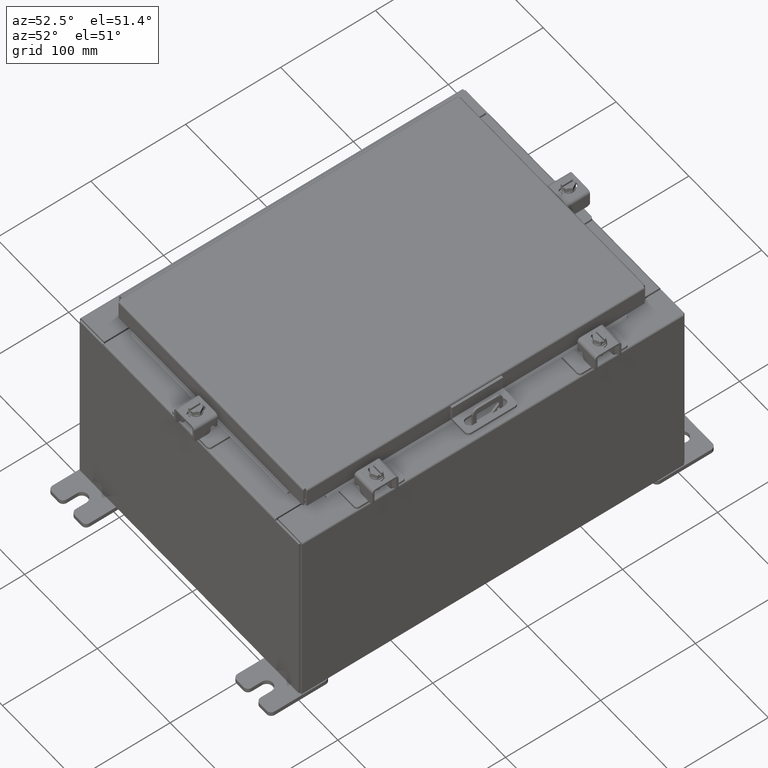
[diagram: clean part render]
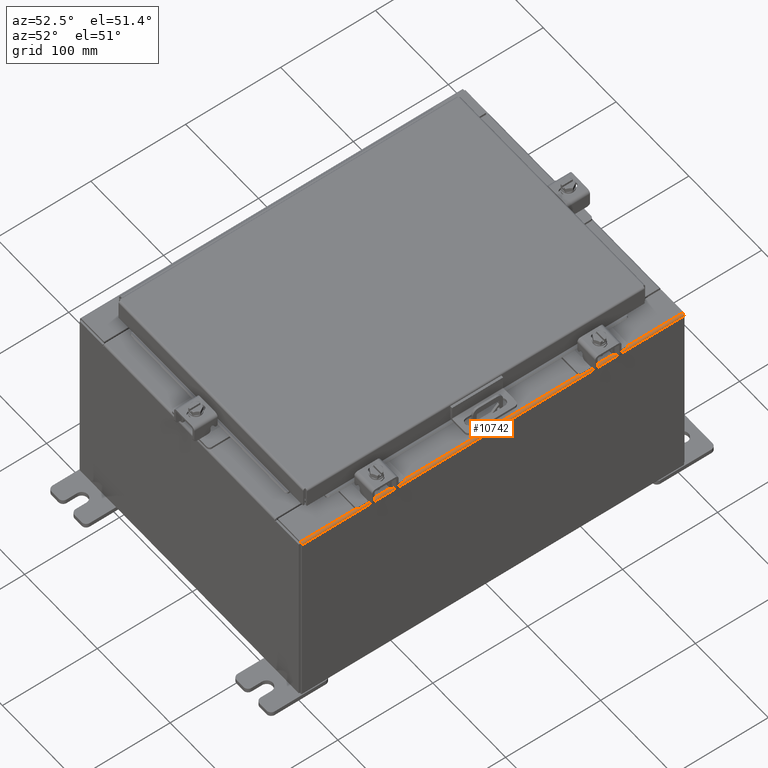
[diagram: same view with one face highlighted and labeled with its STEP entity id]
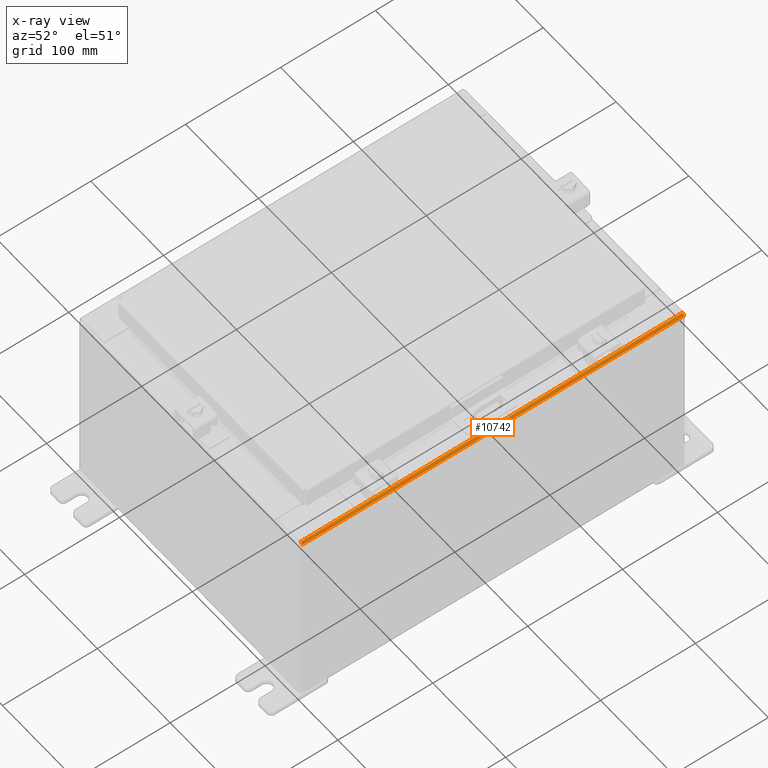
[diagram: x-ray of the same camera — body ghosted, the highlighted face saturated]
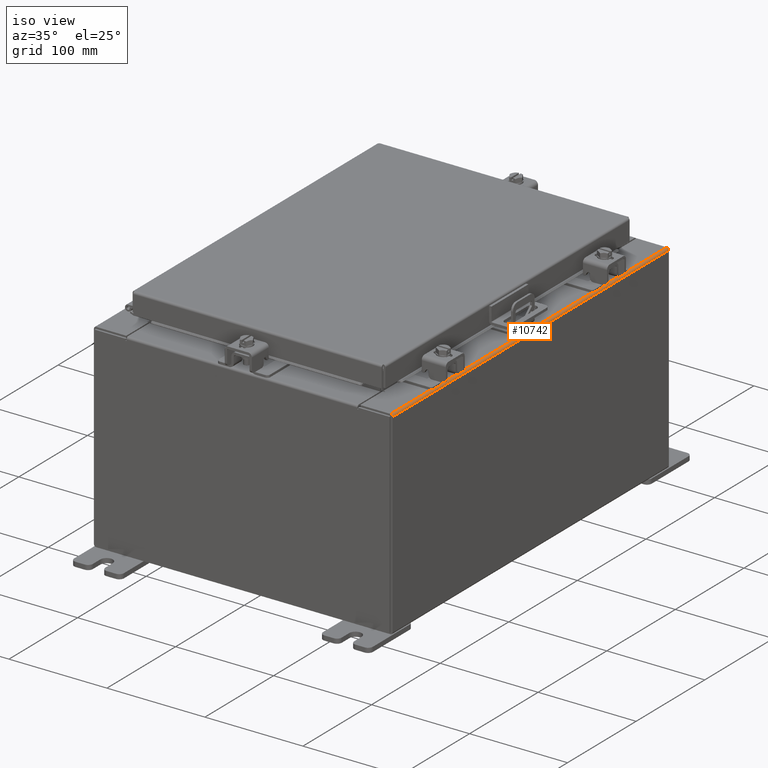
[diagram: same view with one face highlighted and labeled with its STEP entity id]
A machine part, auxiliary view. The second image highlights one B-rep face of the part: STEP entity #10742.
The next image is the same camera in x-ray: the body ghosted, the highlighted face saturated — about 0% of this face is hidden behind the body in this view.
A second angle (iso view) of the same face is appended — the face is thin or edge-on in the first view.
In plain terms, the highlighted cylindrical surface (edge-blend (fillet) strip) has radius 2.2276 mm, axis along (0, 1, 0).
Its self-contained STEP definition (entity closure, byte-faithful):
#418 = CARTESIAN_POINT ( 'NONE',  ( 5.912300000000027600, -7.925300000000000900, 7.925300000000000900 ) ) ;
#653 = CIRCLE ( 'NONE', #6513, 0.08770000000000136000 ) ;
#866 = LINE ( 'NONE', #19404, #16911 ) ;
#1175 = CARTESIAN_POINT ( 'NONE',  ( 6.000000000000029300, 7.925300000000000900, 7.837599999999992100 ) ) ;
#1804 = EDGE_CURVE ( 'NONE', #23732, #2651, #7006, .T. ) ;
#2651 = VERTEX_POINT ( 'NONE', #11891 ) ;
#3431 = EDGE_LOOP ( 'NONE', ( #3882, #12480, #26009, #10548 ) ) ;
#3882 = ORIENTED_EDGE ( 'NONE', *, *, #1804, .F. ) ;
#4238 = DIRECTION ( 'NONE',  ( 0.0000000000000000000, 1.000000000000000000, 0.0000000000000000000 ) ) ;
#4353 = CARTESIAN_POINT ( 'NONE',  ( 5.912300000000027600, 7.925300000000000900, 7.925300000000000000 ) ) ;
#5136 = FACE_OUTER_BOUND ( 'NONE', #3431, .T. ) ;
#5264 = EDGE_CURVE ( 'NONE', #6016, #5565, #866, .T. ) ;
#5565 = VERTEX_POINT ( 'NONE', #418 ) ;
#6016 = VERTEX_POINT ( 'NONE', #4353 ) ;
#6513 = AXIS2_PLACEMENT_3D ( 'NONE', #10957, #25002, #12975 ) ;
#7006 = LINE ( 'NONE', #1175, #12387 ) ;
#7356 = DIRECTION ( 'NONE',  ( -6.893992640440775600E-017, -1.000000000000000000, 6.893992640440816300E-017 ) ) ;
#9874 = CYLINDRICAL_SURFACE ( 'NONE', #20892, 0.08770000000000136000 ) ;
#10300 = CARTESIAN_POINT ( 'NONE',  ( 6.000000000000029300, 7.925300000000000900, 7.837599999999992100 ) ) ;
#10548 = ORIENTED_EDGE ( 'NONE', *, *, #16623, .F. ) ;
#10742 = ADVANCED_FACE ( 'NONE', ( #5136 ), #9874, .T. ) ;
#10957 = CARTESIAN_POINT ( 'NONE',  ( 5.912300000000027600, -7.925300000000000900, 7.837599999999999200 ) ) ;
#11891 = CARTESIAN_POINT ( 'NONE',  ( 6.000000000000026600, -7.925300000000000900, 7.837599999999998300 ) ) ;
#12387 = VECTOR ( 'NONE', #15227, 39.37007874015748100 ) ;
#12480 = ORIENTED_EDGE ( 'NONE', *, *, #21737, .F. ) ;
#12975 = DIRECTION ( 'NONE',  ( 0.0000000000000000000, 0.0000000000000000000, 1.000000000000000000 ) ) ;
#15227 = DIRECTION ( 'NONE',  ( -0.0000000000000000000, -1.000000000000000000, -0.0000000000000000000 ) ) ;
#16058 = DIRECTION ( 'NONE',  ( 1.245996804407854400E-014, 0.0000000000000000000, 1.000000000000000000 ) ) ;
#16281 = CARTESIAN_POINT ( 'NONE',  ( 5.912300000000027600, 7.925300000000000900, 7.837599999999999200 ) ) ;
#16623 = EDGE_CURVE ( 'NONE', #2651, #5565, #653, .T. ) ;
#16911 = VECTOR ( 'NONE', #7356, 39.37007874015748100 ) ;
#17821 = CIRCLE ( 'NONE', #25811, 0.08770000000000136000 ) ;
#18292 = DIRECTION ( 'NONE',  ( 0.0000000000000000000, 0.0000000000000000000, 1.000000000000000000 ) ) ;
#19404 = CARTESIAN_POINT ( 'NONE',  ( 5.912300000000026800, -7.925300000000000900, 7.925300000000000900 ) ) ;
#20111 = DIRECTION ( 'NONE',  ( 0.0000000000000000000, 1.000000000000000000, 0.0000000000000000000 ) ) ;
#20892 = AXIS2_PLACEMENT_3D ( 'NONE', #22122, #20111, #16058 ) ;
#21737 = EDGE_CURVE ( 'NONE', #6016, #23732, #17821, .T. ) ;
#22122 = CARTESIAN_POINT ( 'NONE',  ( 5.912300000000027600, 7.925300000000000900, 7.837599999999999200 ) ) ;
#23732 = VERTEX_POINT ( 'NONE', #10300 ) ;
#25002 = DIRECTION ( 'NONE',  ( -0.0000000000000000000, -1.000000000000000000, -0.0000000000000000000 ) ) ;
#25811 = AXIS2_PLACEMENT_3D ( 'NONE', #16281, #4238, #18292 ) ;
#26009 = ORIENTED_EDGE ( 'NONE', *, *, #5264, .T. ) ;